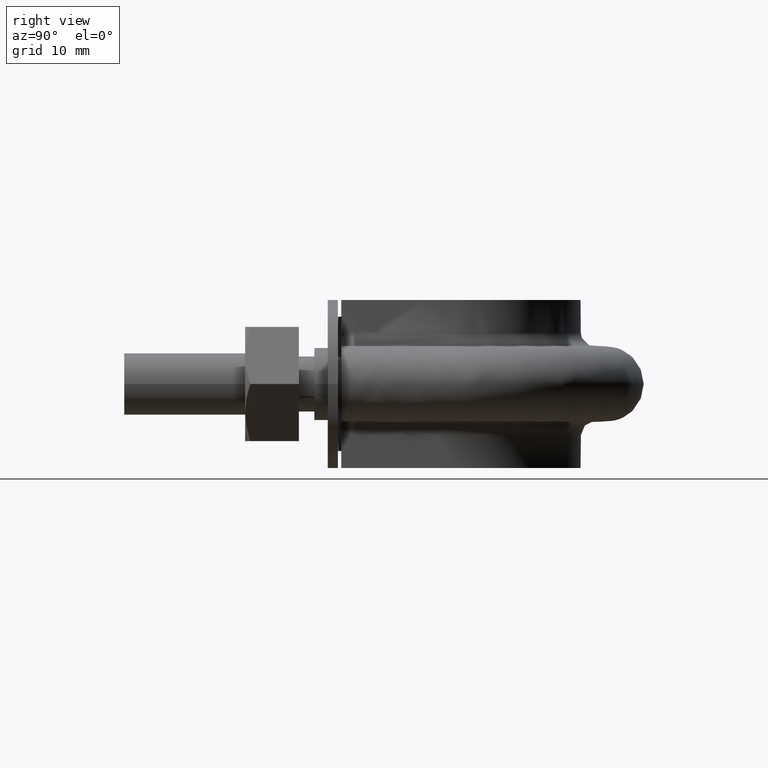
[diagram: clean part render]
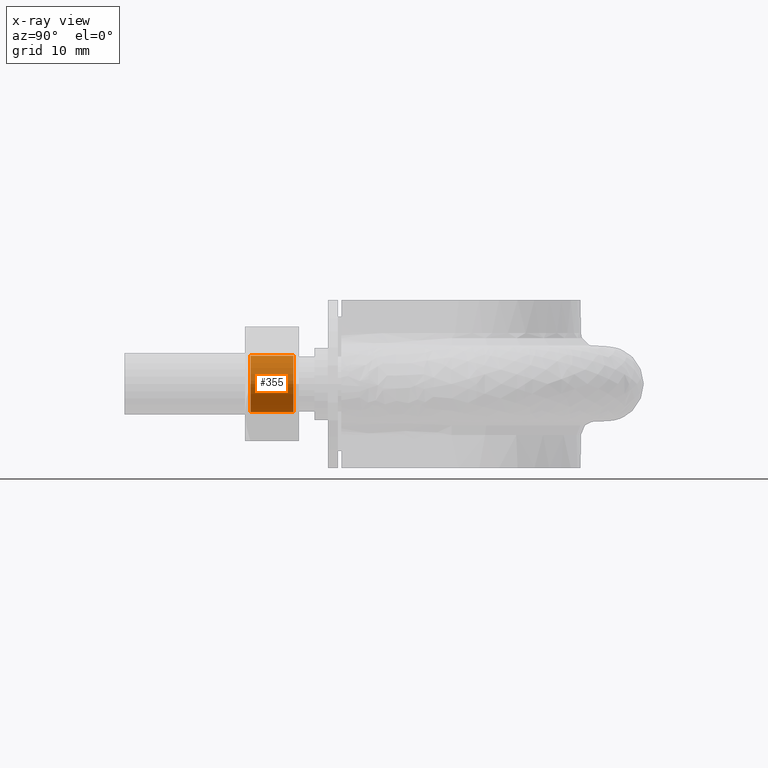
[diagram: x-ray — body ghosted, one internal face saturated and labeled with its STEP entity id]
A machine part, right view, then the same camera in x-ray: the body is ghosted and one INTERNAL B-rep face — a face not visible from any outside direction — is saturated and labeled: STEP entity #355.
In plain terms, the highlighted cylindrical surface (bore or boss wall) has radius 4.188 mm, axis along (-0, -1, -0).
Its self-contained STEP definition (entity closure, byte-faithful):
#355 = ADVANCED_FACE( '', ( #581, #582 ), #583, .F. );
#581 = FACE_OUTER_BOUND( '', #1663, .T. );
#582 = FACE_OUTER_BOUND( '', #1664, .T. );
#583 = CYLINDRICAL_SURFACE( '', #1665, 4.18800000000000 );
#1663 = EDGE_LOOP( '', ( #2362 ) );
#1664 = EDGE_LOOP( '', ( #2363 ) );
#1665 = AXIS2_PLACEMENT_3D( '', #2364, #2365, #2366 );
#2362 = ORIENTED_EDGE( '', *, *, #2732, .T. );
#2363 = ORIENTED_EDGE( '', *, *, #2731, .F. );
#2364 = CARTESIAN_POINT( '', ( -23.0000000000000, 26.0000000000000, 7.29613851974116E-015 ) );
#2365 = DIRECTION( '', ( -2.44921270764475E-016, -1.00000000000000, -3.06151588455594E-016 ) );
#2366 = DIRECTION( '', ( -8.35309044156739E-011, 3.06151588476053E-016, -1.00000000000000 ) );
#2731 = EDGE_CURVE( '', #3093, #3093, #3094, .T. );
#2732 = EDGE_CURVE( '', #3095, #3095, #3096, .T. );
#3093 = VERTEX_POINT( '', #3839 );
#3094 = CIRCLE( '', #3840, 4.18800000000000 );
#3095 = VERTEX_POINT( '', #3841 );
#3096 = CIRCLE( '', #3842, 4.18800000000000 );
#3839 = CARTESIAN_POINT( '', ( -23.0000000003498, 18.8120000000003, -4.18799999999999 ) );
#3840 = AXIS2_PLACEMENT_3D( '', #4279, #4280, #4281 );
#3841 = CARTESIAN_POINT( '', ( -23.0000000003498, 25.1880000000000, -4.18799999999999 ) );
#3842 = AXIS2_PLACEMENT_3D( '', #4282, #4283, #4284 );
#4279 = CARTESIAN_POINT( '', ( -23.0000000000000, 18.8120000000003, 5.09552090192242E-015 ) );
#4280 = DIRECTION( '', ( 2.44921270764475E-016, 1.00000000000000, 3.06151588455594E-016 ) );
#4281 = DIRECTION( '', ( -8.35309044156739E-011, 3.06151588476053E-016, -1.00000000000000 ) );
#4282 = CARTESIAN_POINT( '', ( -23.0000000000000, 25.1880000000000, 7.04754342991522E-015 ) );
#4283 = DIRECTION( '', ( 2.44921270764475E-016, 1.00000000000000, 3.06151588455594E-016 ) );
#4284 = DIRECTION( '', ( -8.35309044156739E-011, 3.06151588476053E-016, -1.00000000000000 ) );